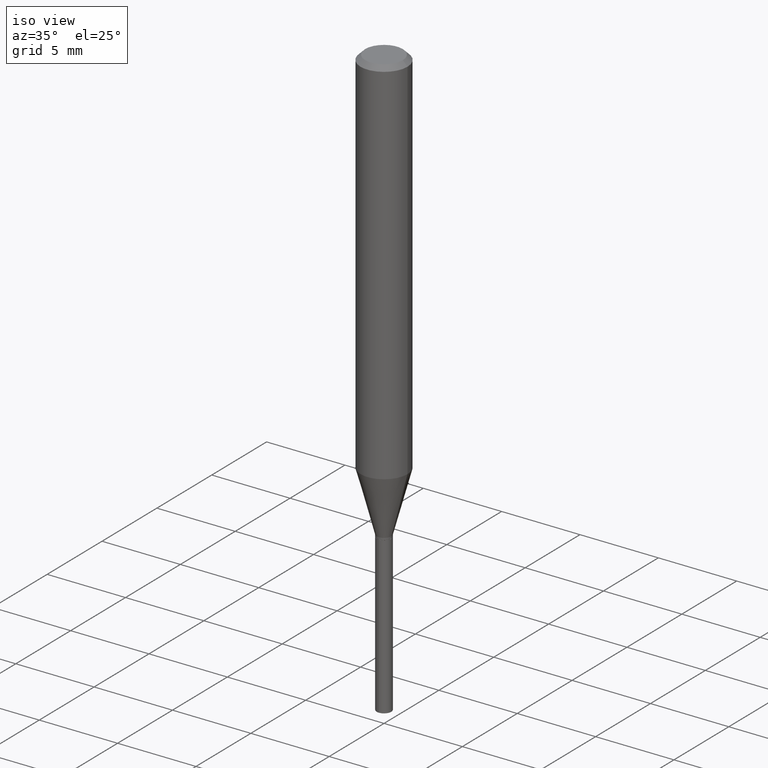
[diagram: clean part render]
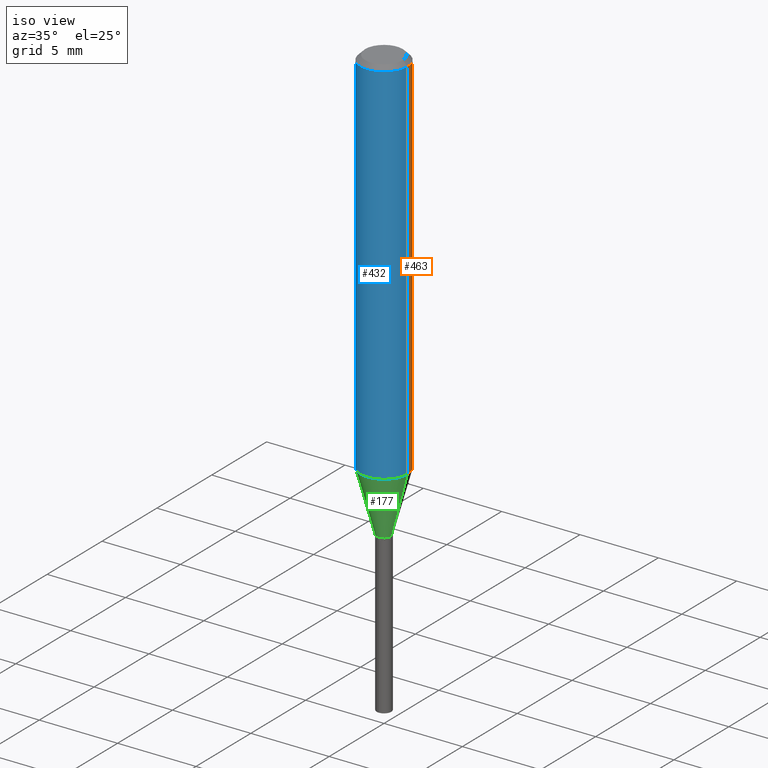
[diagram: same view with three faces highlighted in distinct colors, each labeled with its STEP entity id]
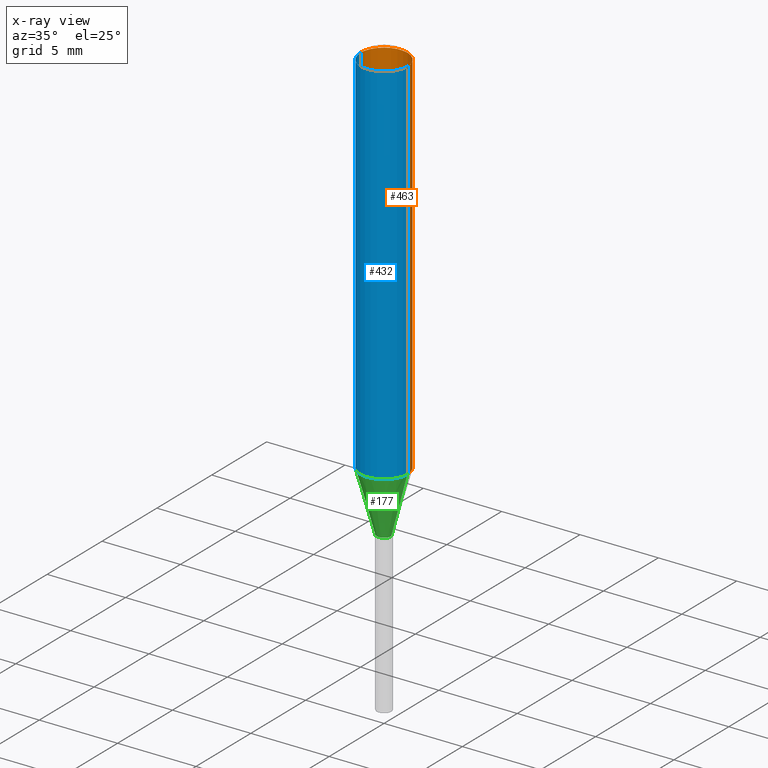
[diagram: x-ray of the same camera — body ghosted, the three highlighted faces saturated]
A machine part, iso view with three faces highlighted in distinct colors.
The next image is the same camera in x-ray (body ghosted, the three faces saturated) — at least one of them is partly hidden behind the body in this view.
Their STEP definitions:

[orange] entity #463 — the highlighted cylindrical surface (edge-blend (fillet) strip) has radius 1.4999 mm, axis along (-0, 0, 1).
#23 = CARTESIAN_POINT ( 'NONE',  ( 0.05905000000000005383, -4.123439461173744271E-16, 2.879382386107502672E-30 ) ) ;
#34 = DIRECTION ( 'NONE',  ( -2.445468806185136877E-29, 3.491481338843145188E-15, 1.000000000000000000 ) ) ;
#46 = EDGE_CURVE ( 'NONE', #382, #329, #55, .T. ) ;
#55 = CIRCLE ( 'NONE', #303, 0.05905000000000010241 ) ;
#57 = CYLINDRICAL_SURFACE ( 'NONE', #394, 0.05905000000000005383 ) ;
#75 = AXIS2_PLACEMENT_3D ( 'NONE', #134, #216, #144 ) ;
#85 = CARTESIAN_POINT ( 'NONE',  ( -0.05905000000000010241, -2.851659473211515038E-15, -0.9369189295915679727 ) ) ;
#93 = CARTESIAN_POINT ( 'NONE',  ( 0.05904999999999999832, -4.535783407291118600E-16, -0.01181000000000006871 ) ) ;
#100 = DIRECTION ( 'NONE',  ( 1.000000000000000000, -6.982962677686266711E-15, 4.876176775795935793E-29 ) ) ;
#134 = CARTESIAN_POINT ( 'NONE',  ( 2.888098660104663328E-31, -4.123439461173779030E-17, -0.01181000000000006871 ) ) ;
#144 = DIRECTION ( 'NONE',  ( 1.000000000000000000, -6.982962677686266711E-15, 0.000000000000000000 ) ) ;
#160 = CARTESIAN_POINT ( 'NONE',  ( -0.05904999999999999832, -1.236659191178456045E-15, -0.01181000000000006871 ) ) ;
#187 = CIRCLE ( 'NONE', #75, 0.05904999999999999832 ) ;
#188 = EDGE_CURVE ( 'NONE', #329, #200, #302, .T. ) ;
#194 = CARTESIAN_POINT ( 'NONE',  ( -0.05905000000000005383, 4.195754854663395423E-16, -2.904631170795524694E-30 ) ) ;
#196 = ORIENTED_EDGE ( 'NONE', *, *, #487, .F. ) ;
#200 = VERTEX_POINT ( 'NONE', #160 ) ;
#202 = CARTESIAN_POINT ( 'NONE',  ( 2.291206016240548157E-29, -3.271234958677854531E-15, -0.9369189295915679727 ) ) ;
#216 = DIRECTION ( 'NONE',  ( -2.445468806185136597E-29, 3.491481338843145583E-15, 1.000000000000000000 ) ) ;
#225 = LINE ( 'NONE', #23, #458 ) ;
#273 = CARTESIAN_POINT ( 'NONE',  ( 0.05905000000000010241, -3.683578904795229057E-15, -0.9369189295915679727 ) ) ;
#284 = FACE_OUTER_BOUND ( 'NONE', #444, .T. ) ;
#302 = LINE ( 'NONE', #194, #455 ) ;
#303 = AXIS2_PLACEMENT_3D ( 'NONE', #202, #356, #425 ) ;
#329 = VERTEX_POINT ( 'NONE', #85 ) ;
#356 = DIRECTION ( 'NONE',  ( -2.445468806185136597E-29, 3.491481338843145583E-15, 1.000000000000000000 ) ) ;
#370 = CARTESIAN_POINT ( 'NONE',  ( 0.000000000000000000, 0.000000000000000000, 0.000000000000000000 ) ) ;
#372 = ORIENTED_EDGE ( 'NONE', *, *, #451, .F. ) ;
#376 = ORIENTED_EDGE ( 'NONE', *, *, #188, .T. ) ;
#377 = DIRECTION ( 'NONE',  ( -2.445468806185136877E-29, 3.491481338843145188E-15, 1.000000000000000000 ) ) ;
#382 = VERTEX_POINT ( 'NONE', #273 ) ;
#394 = AXIS2_PLACEMENT_3D ( 'NONE', #370, #482, #100 ) ;
#409 = ORIENTED_EDGE ( 'NONE', *, *, #46, .T. ) ;
#416 = VERTEX_POINT ( 'NONE', #93 ) ;
#425 = DIRECTION ( 'NONE',  ( 1.000000000000000000, -6.982962677686268288E-15, 0.000000000000000000 ) ) ;
#444 = EDGE_LOOP ( 'NONE', ( #409, #376, #372, #196 ) ) ;
#451 = EDGE_CURVE ( 'NONE', #416, #200, #187, .T. ) ;
#455 = VECTOR ( 'NONE', #377, 39.37007874015748143 ) ;
#458 = VECTOR ( 'NONE', #34, 39.37007874015748143 ) ;
#463 = ADVANCED_FACE ( 'NONE', ( #284 ), #57, .T. ) ;
#482 = DIRECTION ( 'NONE',  ( -2.445468806185136597E-29, 3.491481338843145583E-15, 1.000000000000000000 ) ) ;
#487 = EDGE_CURVE ( 'NONE', #382, #416, #225, .T. ) ;

[blue] entity #432 — the highlighted cylindrical surface (edge-blend (fillet) strip) has radius 1.4999 mm, axis along (-0, 0, 1).
#6 = CARTESIAN_POINT ( 'NONE',  ( 2.888098660104663328E-31, -4.123439461173779030E-17, -0.01181000000000006871 ) ) ;
#23 = CARTESIAN_POINT ( 'NONE',  ( 0.05905000000000005383, -4.123439461173744271E-16, 2.879382386107502672E-30 ) ) ;
#34 = DIRECTION ( 'NONE',  ( -2.445468806185136877E-29, 3.491481338843145188E-15, 1.000000000000000000 ) ) ;
#36 = EDGE_LOOP ( 'NONE', ( #449, #349, #351, #53 ) ) ;
#53 = ORIENTED_EDGE ( 'NONE', *, *, #113, .F. ) ;
#79 = AXIS2_PLACEMENT_3D ( 'NONE', #424, #82, #237 ) ;
#80 = DIRECTION ( 'NONE',  ( -2.445468806185136597E-29, 3.491481338843145583E-15, 1.000000000000000000 ) ) ;
#82 = DIRECTION ( 'NONE',  ( -2.445468806185136597E-29, 3.491481338843145583E-15, 1.000000000000000000 ) ) ;
#85 = CARTESIAN_POINT ( 'NONE',  ( -0.05905000000000010241, -2.851659473211515038E-15, -0.9369189295915679727 ) ) ;
#93 = CARTESIAN_POINT ( 'NONE',  ( 0.05904999999999999832, -4.535783407291118600E-16, -0.01181000000000006871 ) ) ;
#102 = CYLINDRICAL_SURFACE ( 'NONE', #447, 0.05905000000000005383 ) ;
#113 = EDGE_CURVE ( 'NONE', #200, #416, #172, .T. ) ;
#147 = AXIS2_PLACEMENT_3D ( 'NONE', #6, #80, #308 ) ;
#160 = CARTESIAN_POINT ( 'NONE',  ( -0.05904999999999999832, -1.236659191178456045E-15, -0.01181000000000006871 ) ) ;
#172 = CIRCLE ( 'NONE', #147, 0.05904999999999999832 ) ;
#186 = CARTESIAN_POINT ( 'NONE',  ( 0.000000000000000000, 0.000000000000000000, 0.000000000000000000 ) ) ;
#188 = EDGE_CURVE ( 'NONE', #329, #200, #302, .T. ) ;
#194 = CARTESIAN_POINT ( 'NONE',  ( -0.05905000000000005383, 4.195754854663395423E-16, -2.904631170795524694E-30 ) ) ;
#200 = VERTEX_POINT ( 'NONE', #160 ) ;
#205 = CIRCLE ( 'NONE', #79, 0.05905000000000010241 ) ;
#225 = LINE ( 'NONE', #23, #458 ) ;
#237 = DIRECTION ( 'NONE',  ( 1.000000000000000000, -6.982962677686268288E-15, 0.000000000000000000 ) ) ;
#257 = DIRECTION ( 'NONE',  ( -2.445468806185136597E-29, 3.491481338843145583E-15, 1.000000000000000000 ) ) ;
#273 = CARTESIAN_POINT ( 'NONE',  ( 0.05905000000000010241, -3.683578904795229057E-15, -0.9369189295915679727 ) ) ;
#282 = FACE_OUTER_BOUND ( 'NONE', #36, .T. ) ;
#302 = LINE ( 'NONE', #194, #455 ) ;
#308 = DIRECTION ( 'NONE',  ( 1.000000000000000000, -6.982962677686266711E-15, 0.000000000000000000 ) ) ;
#329 = VERTEX_POINT ( 'NONE', #85 ) ;
#349 = ORIENTED_EDGE ( 'NONE', *, *, #386, .T. ) ;
#351 = ORIENTED_EDGE ( 'NONE', *, *, #487, .T. ) ;
#377 = DIRECTION ( 'NONE',  ( -2.445468806185136877E-29, 3.491481338843145188E-15, 1.000000000000000000 ) ) ;
#382 = VERTEX_POINT ( 'NONE', #273 ) ;
#386 = EDGE_CURVE ( 'NONE', #329, #382, #205, .T. ) ;
#416 = VERTEX_POINT ( 'NONE', #93 ) ;
#424 = CARTESIAN_POINT ( 'NONE',  ( 2.291206016240548157E-29, -3.271234958677854531E-15, -0.9369189295915679727 ) ) ;
#432 = ADVANCED_FACE ( 'NONE', ( #282 ), #102, .T. ) ;
#447 = AXIS2_PLACEMENT_3D ( 'NONE', #186, #257, #475 ) ;
#449 = ORIENTED_EDGE ( 'NONE', *, *, #188, .F. ) ;
#455 = VECTOR ( 'NONE', #377, 39.37007874015748143 ) ;
#458 = VECTOR ( 'NONE', #34, 39.37007874015748143 ) ;
#475 = DIRECTION ( 'NONE',  ( 1.000000000000000000, -6.982962677686266711E-15, 4.876176775795935793E-29 ) ) ;
#487 = EDGE_CURVE ( 'NONE', #382, #416, #225, .T. ) ;

[green] entity #177 — the highlighted conical surface has half-angle 15 deg.
#4 = FACE_OUTER_BOUND ( 'NONE', #58, .T. ) ;
#5 = ORIENTED_EDGE ( 'NONE', *, *, #30, .T. ) ;
#29 = VERTEX_POINT ( 'NONE', #326 ) ;
#30 = EDGE_CURVE ( 'NONE', #64, #382, #375, .T. ) ;
#31 = CARTESIAN_POINT ( 'NONE',  ( 0.01830000000000000029, -3.930011395001844240E-15, -1.088999999999999968 ) ) ;
#32 = EDGE_CURVE ( 'NONE', #29, #329, #33, .T. ) ;
#33 = LINE ( 'NONE', #371, #272 ) ;
#44 = ORIENTED_EDGE ( 'NONE', *, *, #60, .T. ) ;
#58 = EDGE_LOOP ( 'NONE', ( #153, #44, #5, #66 ) ) ;
#60 = EDGE_CURVE ( 'NONE', #29, #64, #204, .T. ) ;
#64 = VERTEX_POINT ( 'NONE', #108 ) ;
#66 = ORIENTED_EDGE ( 'NONE', *, *, #386, .F. ) ;
#78 = DIRECTION ( 'NONE',  ( -2.445468806185136597E-29, 3.491481338843145583E-15, 1.000000000000000000 ) ) ;
#79 = AXIS2_PLACEMENT_3D ( 'NONE', #424, #82, #237 ) ;
#82 = DIRECTION ( 'NONE',  ( -2.445468806185136597E-29, 3.491481338843145583E-15, 1.000000000000000000 ) ) ;
#85 = CARTESIAN_POINT ( 'NONE',  ( -0.05905000000000010241, -2.851659473211515038E-15, -0.9369189295915679727 ) ) ;
#108 = CARTESIAN_POINT ( 'NONE',  ( 0.01830000000000000029, -3.930011395001844240E-15, -1.088999999999999968 ) ) ;
#153 = ORIENTED_EDGE ( 'NONE', *, *, #32, .F. ) ;
#177 = ADVANCED_FACE ( 'NONE', ( #4 ), #285, .T. ) ;
#189 = CARTESIAN_POINT ( 'NONE',  ( 2.663115529935613220E-29, -3.802223178000185445E-15, -1.088999999999999968 ) ) ;
#204 = CIRCLE ( 'NONE', #468, 0.01830000000000000029 ) ;
#205 = CIRCLE ( 'NONE', #79, 0.05905000000000010241 ) ;
#237 = DIRECTION ( 'NONE',  ( 1.000000000000000000, -6.982962677686268288E-15, 0.000000000000000000 ) ) ;
#260 = AXIS2_PLACEMENT_3D ( 'NONE', #189, #78, #383 ) ;
#269 = CARTESIAN_POINT ( 'NONE',  ( 2.663115529935613220E-29, -3.802223178000185445E-15, -1.088999999999999968 ) ) ;
#272 = VECTOR ( 'NONE', #288, 39.37007874015748854 ) ;
#273 = CARTESIAN_POINT ( 'NONE',  ( 0.05905000000000010241, -3.683578904795229057E-15, -0.9369189295915679727 ) ) ;
#283 = DIRECTION ( 'NONE',  ( 0.2588190451025211281, 1.565188264969622954E-15, 0.9659258262890679791 ) ) ;
#285 = CONICAL_SURFACE ( 'NONE', #260, 0.01830000000000000029, 0.2617993877991498519 ) ;
#288 = DIRECTION ( 'NONE',  ( -0.2588190451025211281, 5.211531920934547886E-15, 0.9659258262890679791 ) ) ;
#296 = VECTOR ( 'NONE', #283, 39.37007874015748854 ) ;
#326 = CARTESIAN_POINT ( 'NONE',  ( -0.01830000000000000029, -3.680922560703194750E-15, -1.088999999999999968 ) ) ;
#329 = VERTEX_POINT ( 'NONE', #85 ) ;
#371 = CARTESIAN_POINT ( 'NONE',  ( -0.01830000000000000029, -3.672193857356087232E-15, -1.088999999999999968 ) ) ;
#375 = LINE ( 'NONE', #31, #296 ) ;
#382 = VERTEX_POINT ( 'NONE', #273 ) ;
#383 = DIRECTION ( 'NONE',  ( 1.000000000000000000, -6.982962677686258033E-15, 0.000000000000000000 ) ) ;
#386 = EDGE_CURVE ( 'NONE', #329, #382, #205, .T. ) ;
#417 = DIRECTION ( 'NONE',  ( -2.445468806185136597E-29, 3.491481338843145583E-15, 1.000000000000000000 ) ) ;
#424 = CARTESIAN_POINT ( 'NONE',  ( 2.291206016240548157E-29, -3.271234958677854531E-15, -0.9369189295915679727 ) ) ;
#468 = AXIS2_PLACEMENT_3D ( 'NONE', #269, #417, #489 ) ;
#489 = DIRECTION ( 'NONE',  ( 1.000000000000000000, -6.982962677686258033E-15, 0.000000000000000000 ) ) ;